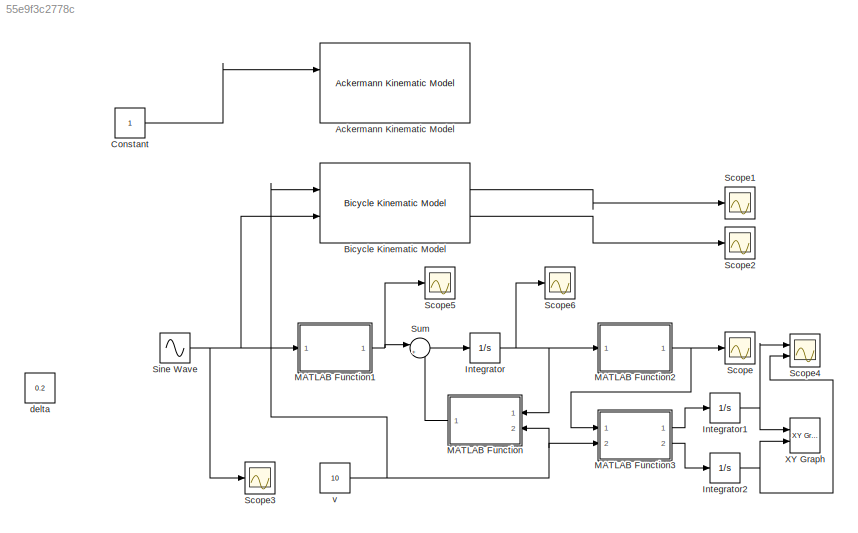
MODEL slx_55e9f3c2778c
KIND model
CONFIG AbsTol = auto
CONFIG EnableMultiTasking = off
CONFIG FixedStep = auto
CONFIG MaxStep = auto
CONFIG MinStep = auto
CONFIG RelTol = 1e-3
CONFIG SampleTimeConstraint = Unconstrained
CONFIG Solver = VariableStepAuto
CONFIG SolverName = VariableStepAuto
CONFIG StartTime = 0.0
CONFIG StopTime = 10.0
BLOCK [Reference] Ackermann Kinematic Model  REF=robotmobilelib/Ackermann Kinematic Model
  Commented = on
  Ports = [2, 2]
  SourceBlock = robotmobilelib/Ackermann Kinematic Model
  SourceProductBaseCode = RO
  SourceProductName = Robotics System Toolbox
  SourceType = Ackermann Kinematic Model
BLOCK [Reference] Bicycle Kinematic Model  REF=robotmobilelib/Bicycle Kinematic Model
  Commented = on
  Ports = [2, 2]
  SourceBlock = robotmobilelib/Bicycle Kinematic Model
  SourceProductBaseCode = RO
  SourceProductName = Robotics System Toolbox
  SourceType = Bicycle Kinematic Model
BLOCK [Constant] Constant
  Commented = on
BLOCK [Integrator] Integrator
  Ports = [1, 1]
BLOCK [Integrator] Integrator1
  Ports = [1, 1]
BLOCK [Integrator] Integrator2
  Ports = [1, 1]
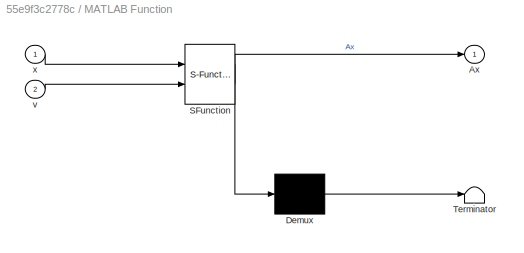
BLOCK [SubSystem] MATLAB Function
  ErrorFcn = Stateflow.Translate.translate
  PermitHierarchicalResolution = ExplicitOnly
  Ports = [2, 1]
  RequestExecContextInheritance = off
  SFBlockType = MATLAB Function
  TreatAsAtomicUnit = on
BLOCK [Demux] MATLAB Function/ Demux 
  Outputs = 1
  Ports = [1, 1]
BLOCK [S-Function] MATLAB Function/ SFunction 
  EnableBusSupport = on
  FunctionName = sf_sfun
  PortCounts = [2 2]
  Ports = [2, 2]
  SFcnIsStateOwnerBlock = off
  SFunctionDeploymentMode = off
  Tag = Stateflow S-Function 2
BLOCK [Terminator] MATLAB Function/ Terminator 
BLOCK [Outport] MATLAB Function/Ax
  IconDisplay = Port number
BLOCK [Inport] MATLAB Function/v
  IconDisplay = Port number
  Port = 2
BLOCK [Inport] MATLAB Function/x
  IconDisplay = Port number
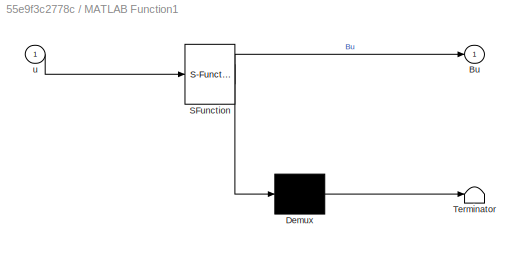
BLOCK [SubSystem] MATLAB Function1
  ErrorFcn = Stateflow.Translate.translate
  PermitHierarchicalResolution = ExplicitOnly
  Ports = [1, 1]
  RequestExecContextInheritance = off
  SFBlockType = MATLAB Function
  TreatAsAtomicUnit = on
BLOCK [Demux] MATLAB Function1/ Demux 
  Outputs = 1
  Ports = [1, 1]
BLOCK [S-Function] MATLAB Function1/ SFunction 
  EnableBusSupport = on
  FunctionName = sf_sfun
  PortCounts = [1 2]
  Ports = [1, 2]
  SFcnIsStateOwnerBlock = off
  SFunctionDeploymentMode = off
  Tag = Stateflow S-Function 1
BLOCK [Terminator] MATLAB Function1/ Terminator 
BLOCK [Outport] MATLAB Function1/Bu
  IconDisplay = Port number
BLOCK [Inport] MATLAB Function1/u
  IconDisplay = Port number
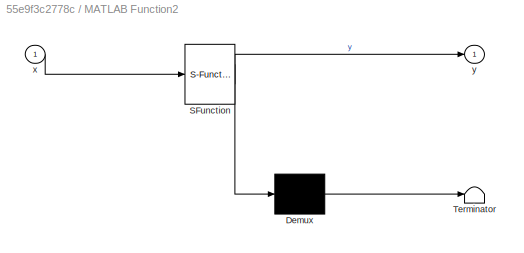
BLOCK [SubSystem] MATLAB Function2
  ErrorFcn = Stateflow.Translate.translate
  PermitHierarchicalResolution = ExplicitOnly
  Ports = [1, 1]
  RequestExecContextInheritance = off
  SFBlockType = MATLAB Function
  TreatAsAtomicUnit = on
BLOCK [Demux] MATLAB Function2/ Demux 
  Outputs = 1
  Ports = [1, 1]
BLOCK [S-Function] MATLAB Function2/ SFunction 
  EnableBusSupport = on
  FunctionName = sf_sfun
  PortCounts = [1 2]
  Ports = [1, 2]
  SFcnIsStateOwnerBlock = off
  SFunctionDeploymentMode = off
  Tag = Stateflow S-Function 3
BLOCK [Terminator] MATLAB Function2/ Terminator 
BLOCK [Inport] MATLAB Function2/x
  IconDisplay = Port number
BLOCK [Outport] MATLAB Function2/y
  IconDisplay = Port number
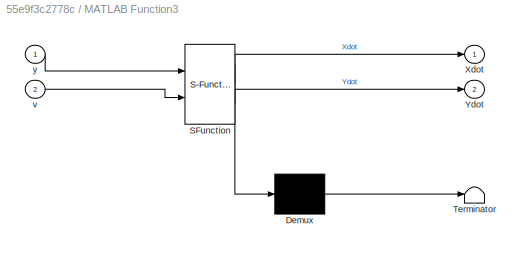
BLOCK [SubSystem] MATLAB Function3
  ErrorFcn = Stateflow.Translate.translate
  PermitHierarchicalResolution = ExplicitOnly
  Ports = [2, 2]
  RequestExecContextInheritance = off
  SFBlockType = MATLAB Function
  TreatAsAtomicUnit = on
BLOCK [Demux] MATLAB Function3/ Demux 
  Outputs = 1
  Ports = [1, 1]
BLOCK [S-Function] MATLAB Function3/ SFunction 
  EnableBusSupport = on
  FunctionName = sf_sfun
  PortCounts = [2 3]
  Ports = [2, 3]
  SFcnIsStateOwnerBlock = off
  SFunctionDeploymentMode = off
  Tag = Stateflow S-Function 4
BLOCK [Terminator] MATLAB Function3/ Terminator 
BLOCK [Outport] MATLAB Function3/Xdot
  IconDisplay = Port number
BLOCK [Outport] MATLAB Function3/Ydot
  IconDisplay = Port number
  Port = 2
BLOCK [Inport] MATLAB Function3/v
  IconDisplay = Port number
  Port = 2
BLOCK [Inport] MATLAB Function3/y
  IconDisplay = Port number
BLOCK [Scope] Scope
  Floating = off
  NumInputPorts = 1
  Ports = [1]
  ScopeSpecificationString = Simulink.scopes.TimeScopeBlockCfg('CurrentConfiguration', extmgr.ConfigurationSet(extmgr.Configuration('Core','General UI',true),extmgr.Configuration('Core','Source UI',true),extmgr.Configuration('Sources','WiredSimulink',true),extmgr.Configuration('Visuals','Time Domain',true,'SerializedDisplays',{struct('MinYLimReal','-0.06165','MaxYLimReal','0.54043','YLabelReal','','MinYLimMag','0.00000','MaxY...<+1412ch>
BLOCK [Scope] Scope1
  Commented = on
  Floating = off
  NumInputPorts = 1
  Ports = [1]
  ScopeSpecificationString = Simulink.scopes.TimeScopeBlockCfg('CurrentConfiguration', extmgr.ConfigurationSet(extmgr.Configuration('Core','General UI',true),extmgr.Configuration('Core','Source UI',true),extmgr.Configuration('Sources','WiredSimulink',true,'DataLoggingVariableName','ScopeData1'),extmgr.Configuration('Visuals','Time Domain',true,'SerializedDisplays',{struct('MinYLimReal','-8.08034','MaxYLimReal','72.72305','YLa...<+1416ch>
BLOCK [Scope] Scope2
  Commented = on
  Floating = off
  NumInputPorts = 1
  Ports = [1]
  ScopeSpecificationString = Simulink.scopes.TimeScopeBlockCfg('CurrentConfiguration', extmgr.ConfigurationSet(extmgr.Configuration('Core','General UI',true),extmgr.Configuration('Core','Source UI',true),extmgr.Configuration('Sources','WiredSimulink',true,'DataLoggingVariableName','ScopeData2'),extmgr.Configuration('Visuals','Time Domain',true),extmgr.Configuration('Tools','Plot Navigation',true),extmgr.Configuration('Tools',...<+40ch>
BLOCK [Scope] Scope3
  Floating = off
  NumInputPorts = 1
  Ports = [1]
  ScopeSpecificationString = Simulink.scopes.TimeScopeBlockCfg('CurrentConfiguration', extmgr.ConfigurationSet(extmgr.Configuration('Core','General UI',true),extmgr.Configuration('Core','Source UI',true),extmgr.Configuration('Sources','WiredSimulink',true,'DataLoggingVariableName','ScopeData3'),extmgr.Configuration('Visuals','Time Domain',true,'SerializedDisplays',{struct('MinYLimReal','-0.08749','MaxYLimReal','0.08745','YLab...<+1421ch>
BLOCK [Scope] Scope4
  Floating = off
  NumInputPorts = 2
  Ports = [2]
  ScopeSpecificationString = Simulink.scopes.TimeScopeBlockCfg('CurrentConfiguration', extmgr.ConfigurationSet(extmgr.Configuration('Core','General UI',true),extmgr.Configuration('Core','Source UI',true),extmgr.Configuration('Sources','WiredSimulink',true,'DataLoggingVariableName','ScopeData4'),extmgr.Configuration('Visuals','Time Domain',true,'SerializedDisplays',{struct('MinYLimReal','-11.82773','MaxYLimReal','106.4496','YL...<+1442ch>
BLOCK [Scope] Scope5
  Floating = off
  NumInputPorts = 1
  Ports = [1]
  ScopeSpecificationString = Simulink.scopes.TimeScopeBlockCfg('CurrentConfiguration', extmgr.ConfigurationSet(extmgr.Configuration('Core','General UI',true),extmgr.Configuration('Core','Source UI',true),extmgr.Configuration('Sources','WiredSimulink',true,'DataLoggingVariableName','ScopeData1'),extmgr.Configuration('Visuals','Time Domain',true,'SerializedDisplays',{struct('MinYLimReal','-5.67678','MaxYLimReal','5.67394','YLab...<+1493ch>
BLOCK [Scope] Scope6
  Floating = off
  NumInputPorts = 1
  Ports = [1]
  ScopeSpecificationString = Simulink.scopes.TimeScopeBlockCfg('CurrentConfiguration', extmgr.ConfigurationSet(extmgr.Configuration('Core','General UI',true),extmgr.Configuration('Core','Source UI',true),extmgr.Configuration('Sources','WiredSimulink',true,'DataLoggingVariableName','ScopeData2'),extmgr.Configuration('Visuals','Time Domain',true,'SerializedDisplays',{struct('MinYLimReal','-0.32913','MaxYLimReal','0.57015','YLab...<+1469ch>
BLOCK [Sin] Sine Wave
  Amplitude = 0.07
  Ports = [0, 1]
  SampleTime = 0
BLOCK [Sum] Sum
  IconShape = round
  InputSameDT = off
  Inputs = |++
  OutDataTypeStr = Inherit: Inherit via internal rule
  Ports = [2, 1]
  SaturateOnIntegerOverflow = off
BLOCK [Reference] XY Graph  REF=simulink/Sinks/XY Graph
  Ports = [2]
  SourceBlock = simulink/Sinks/XY Graph
  SourceProductBaseCode = SL
  SourceProductName = Simulink
  SourceType = XY scope.
BLOCK [Constant] delta
  Commented = on
  Value = 0.2
BLOCK [Constant] v
  Value = 10
LINE Bicycle Kinematic Model:1 -> Scope1:1
LINE Bicycle Kinematic Model:2 -> Scope2:1
LINE Constant:1 -> Ackermann Kinematic Model:1
NET Integrator1:1 -> Scope4:1, XY Graph:1
NET Integrator2:1 -> Scope4:2, XY Graph:2
NET Integrator:1 -> MATLAB Function2:1, MATLAB Function:1, Scope6:1
NET MATLAB Function1:1 -> Scope5:1, Sum:1
NET MATLAB Function2:1 -> MATLAB Function3:1, Scope:1
LINE MATLAB Function3:1 -> Integrator1:1
LINE MATLAB Function3:2 -> Integrator2:1
LINE MATLAB Function:1 -> Sum:2
NET Sine Wave:1 -> Bicycle Kinematic Model:2, MATLAB Function1:1, Scope3:1
LINE Sum:1 -> Integrator:1
NET v:1 -> Bicycle Kinematic Model:1, MATLAB Function3:2, MATLAB Function:2
note: NET lines group one-source signal fan-out (src -> all destinations, sorted); 1:1 wires keep LINE
CHART MATLAB Function1 states=1 transitions=1
  STATE_LABEL 'eML_blk_kernel()'
  STATE_LABEL 'SCRIPT:\nfunction Bu = Bmat(u)\n\nm = 1350; % kg\nlf = 1.016; % m\nIz = 4000; % kg.m^2\nCf = 87594; % N/rad\n\nB = [0;Cf/m;0;(Cf*lf)/Iz];\n\nBu = B*u;\n'
CHART MATLAB Function states=1 transitions=1
  STATE_LABEL 'eML_blk_kernel()'
  STATE_LABEL 'SCRIPT:\nfunction Ax = Amat(x,v)\n\nm = 1350; % kg\nlf = 1.016; % m\nlr = 1.562; % m\nIz = 4000; % kg.m^2\nCf = 87594; % N/rad\nCr = 87594; % N/rad\n\na22 = -(Cf+Cr)/(m*v);\na24 = (Cr*lr-Cf*lf)/(m*v)-v;\na42 = (Cr*lr-Cf*lf)/(Iz*v);\na44 = (-Cr*lr^2-Cf*lf^2)/(Iz*v);\n\nA = [0, 1, 0, 0\n    0, a22, 0, a24\n    0, 0, 0, 1\n    0, a42, 0, a44];\n\nAx = A*x;\n'
CHART MATLAB Function2 states=1 transitions=1
  STATE_LABEL 'eML_blk_kernel()'
  STATE_LABEL 'SCRIPT:\nfunction y = Cmat(x)\n\nC = [1, 0, 0, 0\n    0, 0, 1, 0];\n\ny = C*x;\n'
CHART MATLAB Function3 states=1 transitions=1
  STATE_LABEL 'eML_blk_kernel()'
  STATE_LABEL 'SCRIPT:\nfunction [Xdot, Ydot] = CmatXY(y,v)\n\nydot = y(1);\nphi = y(2);\n\nYdot = sin(phi)*v+cos(phi)*ydot;\nXdot = cos(phi)*v-sin(phi)*ydot;\n'
